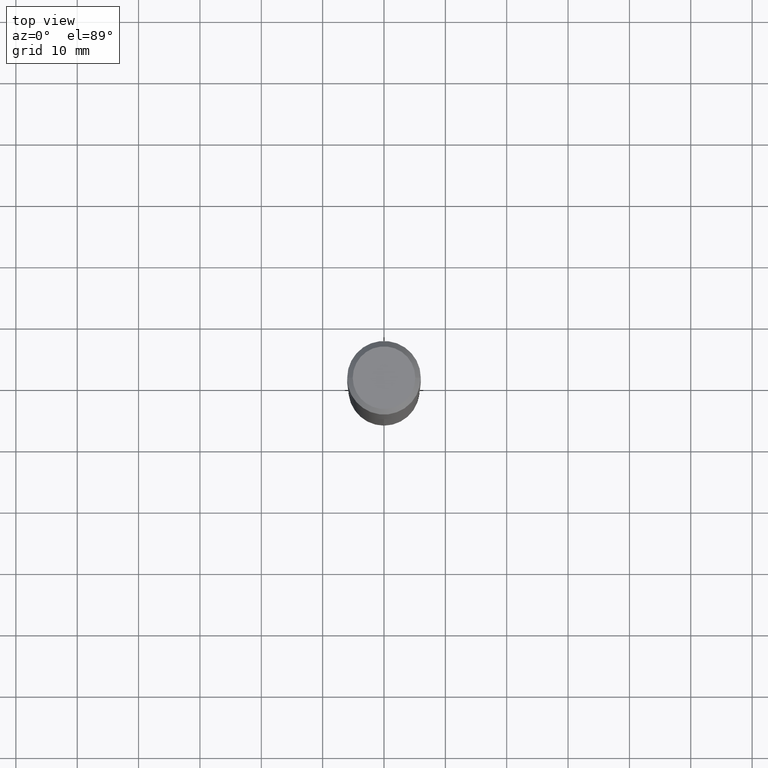
[diagram: clean part render]
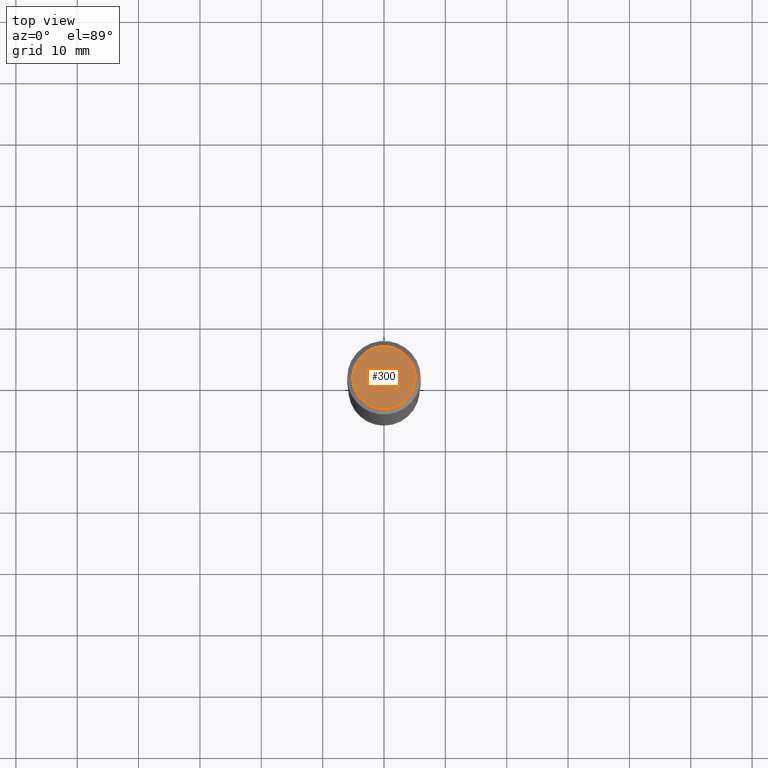
[diagram: same view with one face highlighted and labeled with its STEP entity id]
A machine part, top view. The second image highlights one B-rep face of the part: STEP entity #300.
In plain terms, the highlighted planar face has unit normal (0, -0, -1).
Its self-contained STEP definition (entity closure, byte-faithful):
#8 = CARTESIAN_POINT ( 'NONE',  ( -5.008488096090115757E-47, 7.150793614331959538E-33, 2.048068690724057264E-18 ) ) ;
#23 = AXIS2_PLACEMENT_3D ( 'NONE', #8, #120, #36 ) ;
#36 = DIRECTION ( 'NONE',  ( -1.000000000000000000, 6.982962677686265922E-15, -4.876176775795935793E-29 ) ) ;
#49 = ORIENTED_EDGE ( 'NONE', *, *, #464, .T. ) ;
#99 = DIRECTION ( 'NONE',  ( 1.000000000000000000, -6.982962677686266711E-15, 4.876140833081945105E-29 ) ) ;
#112 = PLANE ( 'NONE',  #23 ) ;
#120 = DIRECTION ( 'NONE',  ( 2.438088387897960049E-29, -3.491481338843145188E-15, -1.000000000000000000 ) ) ;
#170 = EDGE_LOOP ( 'NONE', ( #49, #253 ) ) ;
#171 = EDGE_CURVE ( 'NONE', #476, #409, #216, .T. ) ;
#195 = FACE_OUTER_BOUND ( 'NONE', #170, .T. ) ;
#212 = CARTESIAN_POINT ( 'NONE',  ( -1.001697619218023151E-46, 1.430158722866391908E-32, 4.096137381448114529E-18 ) ) ;
#216 = CIRCLE ( 'NONE', #366, 0.2007700000000000040 ) ;
#253 = ORIENTED_EDGE ( 'NONE', *, *, #171, .T. ) ;
#293 = DIRECTION ( 'NONE',  ( -2.445468806185136597E-29, 3.491481338843145583E-15, 1.000000000000000000 ) ) ;
#300 = ADVANCED_FACE ( 'NONE', ( #195 ), #112, .F. ) ;
#331 = CIRCLE ( 'NONE', #384, 0.2007700000000000040 ) ;
#347 = CARTESIAN_POINT ( 'NONE',  ( -0.2007700000000000040, 1.463821008716677338E-15, 4.096137381438094301E-18 ) ) ;
#348 = CARTESIAN_POINT ( 'NONE',  ( 0.2007700000000000040, -1.560767496960719672E-15, 4.096137381458473721E-18 ) ) ;
#366 = AXIS2_PLACEMENT_3D ( 'NONE', #212, #293, #99 ) ;
#384 = AXIS2_PLACEMENT_3D ( 'NONE', #438, #398, #444 ) ;
#398 = DIRECTION ( 'NONE',  ( -2.445468806185136597E-29, 3.491481338843145583E-15, 1.000000000000000000 ) ) ;
#409 = VERTEX_POINT ( 'NONE', #347 ) ;
#438 = CARTESIAN_POINT ( 'NONE',  ( -1.001697619218023151E-46, 1.430158722866391908E-32, 4.096137381448114529E-18 ) ) ;
#444 = DIRECTION ( 'NONE',  ( 1.000000000000000000, -6.982962677686266711E-15, 4.876140833081945105E-29 ) ) ;
#464 = EDGE_CURVE ( 'NONE', #409, #476, #331, .T. ) ;
#476 = VERTEX_POINT ( 'NONE', #348 ) ;